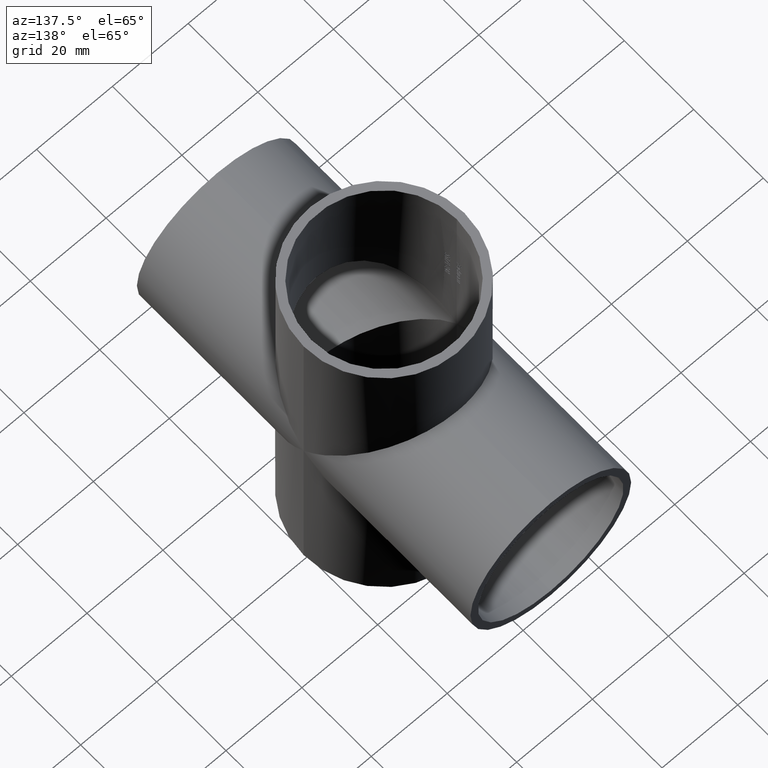
[diagram: clean part render]
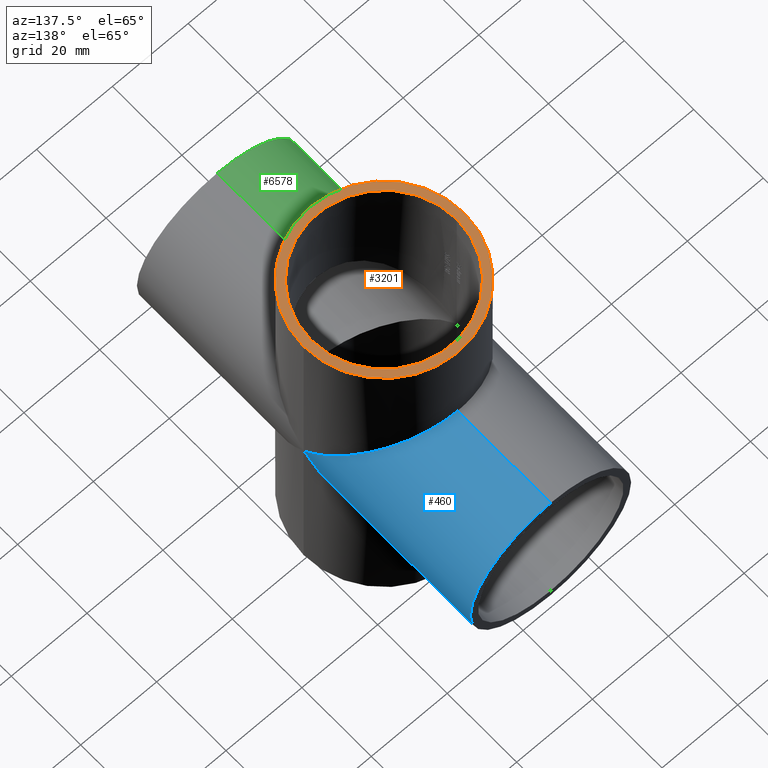
[diagram: same view with three faces highlighted in distinct colors, each labeled with its STEP entity id]
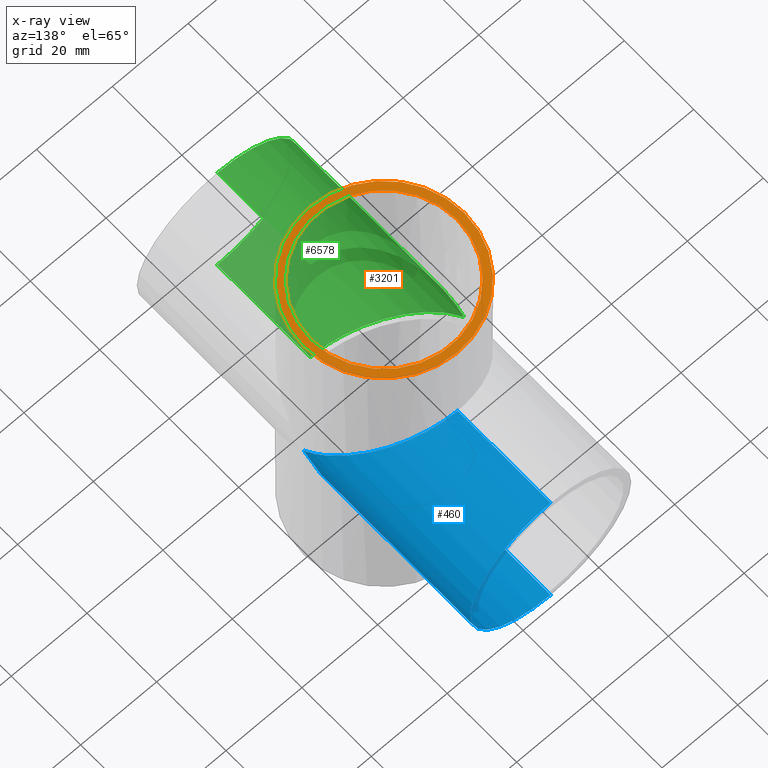
[diagram: x-ray of the same camera — body ghosted, the three highlighted faces saturated]
A machine part, auxiliary view with three faces highlighted in distinct colors.
The next image is the same camera in x-ray (body ghosted, the three faces saturated) — at least one of them is partly hidden behind the body in this view.
Their STEP definitions:

[orange] entity #3201 — the highlighted planar face has unit normal (0, 0, 1).
#69 = EDGE_CURVE ( 'NONE', #5589, #10329, #8343, .T. ) ;
#479 = PLANE ( 'NONE',  #4767 ) ;
#674 = VERTEX_POINT ( 'NONE', #2988 ) ;
#914 = CARTESIAN_POINT ( 'NONE',  ( 0.0000000000000000000, 0.0000000000000000000, 48.00000000000000000 ) ) ;
#1334 = DIRECTION ( 'NONE',  ( 1.000000000000000000, 0.0000000000000000000, -0.0000000000000000000 ) ) ;
#1770 = DIRECTION ( 'NONE',  ( 1.000000000000000000, 0.0000000000000000000, 0.0000000000000000000 ) ) ;
#2018 = EDGE_CURVE ( 'NONE', #674, #3695, #10590, .T. ) ;
#2138 = CIRCLE ( 'NONE', #6703, 19.20000000000000300 ) ;
#2278 = CARTESIAN_POINT ( 'NONE',  ( 0.0000000000000000000, 0.0000000000000000000, 48.00000000000000000 ) ) ;
#2318 = DIRECTION ( 'NONE',  ( 0.0000000000000000000, 0.0000000000000000000, 1.000000000000000000 ) ) ;
#2348 = DIRECTION ( 'NONE',  ( 1.000000000000000000, 0.0000000000000000000, 0.0000000000000000000 ) ) ;
#2349 = DIRECTION ( 'NONE',  ( 0.0000000000000000000, 0.0000000000000000000, 1.000000000000000000 ) ) ;
#2782 = FACE_BOUND ( 'NONE', #7956, .T. ) ;
#2840 = CARTESIAN_POINT ( 'NONE',  ( -19.20000000000000300, 0.0000000000000000000, 48.00000000000000000 ) ) ;
#2884 = ORIENTED_EDGE ( 'NONE', *, *, #2018, .T. ) ;
#2988 = CARTESIAN_POINT ( 'NONE',  ( 21.19999999999999900, 2.596251214192388800E-015, 48.00000000000000000 ) ) ;
#3140 = CARTESIAN_POINT ( 'NONE',  ( -21.19999999999999900, 0.0000000000000000000, 48.00000000000000000 ) ) ;
#3144 = ORIENTED_EDGE ( 'NONE', *, *, #9001, .T. ) ;
#3201 = ADVANCED_FACE ( 'NONE', ( #2782, #4960 ), #479, .T. ) ;
#3404 = ORIENTED_EDGE ( 'NONE', *, *, #69, .F. ) ;
#3547 = ORIENTED_EDGE ( 'NONE', *, *, #3705, .F. ) ;
#3571 = EDGE_LOOP ( 'NONE', ( #3144, #2884 ) ) ;
#3695 = VERTEX_POINT ( 'NONE', #3140 ) ;
#3705 = EDGE_CURVE ( 'NONE', #10329, #5589, #2138, .T. ) ;
#4767 = AXIS2_PLACEMENT_3D ( 'NONE', #7845, #6200, #1334 ) ;
#4924 = DIRECTION ( 'NONE',  ( 1.000000000000000000, 0.0000000000000000000, 0.0000000000000000000 ) ) ;
#4960 = FACE_OUTER_BOUND ( 'NONE', #3571, .T. ) ;
#4963 = DIRECTION ( 'NONE',  ( 0.0000000000000000000, 0.0000000000000000000, 1.000000000000000000 ) ) ;
#5002 = CARTESIAN_POINT ( 'NONE',  ( 0.0000000000000000000, 0.0000000000000000000, 48.00000000000000000 ) ) ;
#5589 = VERTEX_POINT ( 'NONE', #9005 ) ;
#6200 = DIRECTION ( 'NONE',  ( 0.0000000000000000000, 0.0000000000000000000, 1.000000000000000000 ) ) ;
#6650 = DIRECTION ( 'NONE',  ( 0.0000000000000000000, 0.0000000000000000000, 1.000000000000000000 ) ) ;
#6703 = AXIS2_PLACEMENT_3D ( 'NONE', #7240, #2349, #8078 ) ;
#7240 = CARTESIAN_POINT ( 'NONE',  ( 0.0000000000000000000, 0.0000000000000000000, 48.00000000000000000 ) ) ;
#7394 = AXIS2_PLACEMENT_3D ( 'NONE', #914, #6650, #1770 ) ;
#7845 = CARTESIAN_POINT ( 'NONE',  ( 0.0000000000000000000, 0.0000000000000000000, 48.00000000000000000 ) ) ;
#7956 = EDGE_LOOP ( 'NONE', ( #3547, #3404 ) ) ;
#8078 = DIRECTION ( 'NONE',  ( 1.000000000000000000, 0.0000000000000000000, 0.0000000000000000000 ) ) ;
#8343 = CIRCLE ( 'NONE', #8799, 19.20000000000000300 ) ;
#8799 = AXIS2_PLACEMENT_3D ( 'NONE', #2278, #2318, #2348 ) ;
#9001 = EDGE_CURVE ( 'NONE', #3695, #674, #10669, .T. ) ;
#9005 = CARTESIAN_POINT ( 'NONE',  ( 19.20000000000000300, 2.351321854362918100E-015, 48.00000000000000000 ) ) ;
#10329 = VERTEX_POINT ( 'NONE', #2840 ) ;
#10467 = AXIS2_PLACEMENT_3D ( 'NONE', #5002, #4963, #4924 ) ;
#10590 = CIRCLE ( 'NONE', #10467, 21.19999999999999900 ) ;
#10669 = CIRCLE ( 'NONE', #7394, 21.19999999999999900 ) ;

[blue] entity #460 — the highlighted cylindrical surface (partial cylindrical patch) has radius 21.2 mm, axis along (-0, -1, -0).
#384 = EDGE_CURVE ( 'NONE', #3604, #826, #6770, .T. ) ;
#460 = ADVANCED_FACE ( 'NONE', ( #1936 ), #5987, .T. ) ;
#826 = VERTEX_POINT ( 'NONE', #9466 ) ;
#1041 = CARTESIAN_POINT ( 'NONE',  ( 2.596251214192388800E-015, 48.00000000000000000, 21.19999999999999900 ) ) ;
#1086 =( BOUNDED_CURVE ( )  B_SPLINE_CURVE ( 3, ( #8696, #5408, #7892, #3001 ),
 .UNSPECIFIED., .F., .F. ) 
 B_SPLINE_CURVE_WITH_KNOTS ( ( 4, 4 ),
 ( 4.712388980384689700, 6.283185307179586200 ),
 .UNSPECIFIED. ) 
 CURVE ( )  GEOMETRIC_REPRESENTATION_ITEM ( )  RATIONAL_B_SPLINE_CURVE ( ( 1.000000000000000000, 0.8047378541243649400, 0.8047378541243649400, 1.000000000000000000 ) ) 
 REPRESENTATION_ITEM ( '' )  );
#1378 = CARTESIAN_POINT ( 'NONE',  ( 2.596251214192388800E-015, 48.00000000000000000, 21.19999999999999900 ) ) ;
#1435 = VERTEX_POINT ( 'NONE', #6893 ) ;
#1936 = FACE_OUTER_BOUND ( 'NONE', #4721, .T. ) ;
#2118 = ORIENTED_EDGE ( 'NONE', *, *, #6697, .T. ) ;
#2214 = DIRECTION ( 'NONE',  ( 0.0000000000000000000, 1.000000000000000000, 0.0000000000000000000 ) ) ;
#2332 = AXIS2_PLACEMENT_3D ( 'NONE', #5304, #5899, #4509 ) ;
#2496 = CARTESIAN_POINT ( 'NONE',  ( 0.0000000000000000000, 21.19999999999999900, -21.19999999999999900 ) ) ;
#2685 =( BOUNDED_CURVE ( )  B_SPLINE_CURVE ( 3, ( #7273, #9627, #8928, #4029 ),
 .UNSPECIFIED., .F., .T. ) 
 B_SPLINE_CURVE_WITH_KNOTS ( ( 4, 4 ),
 ( 3.141592653589793100, 4.712388980384689700 ),
 .UNSPECIFIED. ) 
 CURVE ( )  GEOMETRIC_REPRESENTATION_ITEM ( )  RATIONAL_B_SPLINE_CURVE ( ( 1.000000000000000000, 0.8047378541243649400, 0.8047378541243649400, 1.000000000000000000 ) ) 
 REPRESENTATION_ITEM ( '' )  );
#2741 = ORIENTED_EDGE ( 'NONE', *, *, #9049, .F. ) ;
#2901 = VERTEX_POINT ( 'NONE', #2496 ) ;
#3001 = CARTESIAN_POINT ( 'NONE',  ( 0.0000000000000000000, 21.19999999999999900, -21.19999999999999900 ) ) ;
#3002 = DIRECTION ( 'NONE',  ( -0.0000000000000000000, -1.000000000000000000, -0.0000000000000000000 ) ) ;
#3466 = DIRECTION ( 'NONE',  ( -0.0000000000000000000, -1.000000000000000000, -0.0000000000000000000 ) ) ;
#3589 = EDGE_CURVE ( 'NONE', #3604, #8686, #9172, .T. ) ;
#3604 = VERTEX_POINT ( 'NONE', #1378 ) ;
#4012 = AXIS2_PLACEMENT_3D ( 'NONE', #7094, #2214, #7930 ) ;
#4029 = CARTESIAN_POINT ( 'NONE',  ( 21.19999999999999900, 0.0000000000000000000, 0.0000000000000000000 ) ) ;
#4509 = DIRECTION ( 'NONE',  ( 0.0000000000000000000, 0.0000000000000000000, -1.000000000000000000 ) ) ;
#4622 = VECTOR ( 'NONE', #3002, 1000.000000000000000 ) ;
#4721 = EDGE_LOOP ( 'NONE', ( #5541, #6048, #6693, #2118, #2741 ) ) ;
#5304 = CARTESIAN_POINT ( 'NONE',  ( 0.0000000000000000000, 48.00000000000000000, 0.0000000000000000000 ) ) ;
#5408 = CARTESIAN_POINT ( 'NONE',  ( 21.19999999999999200, 12.41867247769037700, -12.41867247769037700 ) ) ;
#5541 = ORIENTED_EDGE ( 'NONE', *, *, #3589, .F. ) ;
#5899 = DIRECTION ( 'NONE',  ( -0.0000000000000000000, -1.000000000000000000, -0.0000000000000000000 ) ) ;
#5987 = CYLINDRICAL_SURFACE ( 'NONE', #2332, 21.19999999999999900 ) ;
#6048 = ORIENTED_EDGE ( 'NONE', *, *, #384, .T. ) ;
#6050 = VECTOR ( 'NONE', #3466, 1000.000000000000000 ) ;
#6386 = EDGE_CURVE ( 'NONE', #826, #1435, #2685, .T. ) ;
#6560 = CARTESIAN_POINT ( 'NONE',  ( 0.0000000000000000000, 48.00000000000000000, -21.19999999999999900 ) ) ;
#6693 = ORIENTED_EDGE ( 'NONE', *, *, #6386, .T. ) ;
#6697 = EDGE_CURVE ( 'NONE', #1435, #2901, #1086, .T. ) ;
#6770 = LINE ( 'NONE', #1041, #4622 ) ;
#6893 = CARTESIAN_POINT ( 'NONE',  ( 21.19999999999999900, 0.0000000000000000000, 0.0000000000000000000 ) ) ;
#7094 = CARTESIAN_POINT ( 'NONE',  ( 0.0000000000000000000, 48.00000000000000000, 0.0000000000000000000 ) ) ;
#7273 = CARTESIAN_POINT ( 'NONE',  ( 2.596251214192388800E-015, 21.19999999999999900, 21.19999999999999900 ) ) ;
#7892 = CARTESIAN_POINT ( 'NONE',  ( 12.41867247769038200, 21.19999999999999200, -21.19999999999999200 ) ) ;
#7930 = DIRECTION ( 'NONE',  ( 0.0000000000000000000, 0.0000000000000000000, 1.000000000000000000 ) ) ;
#8268 = LINE ( 'NONE', #9169, #6050 ) ;
#8686 = VERTEX_POINT ( 'NONE', #6560 ) ;
#8696 = CARTESIAN_POINT ( 'NONE',  ( 21.19999999999999900, 0.0000000000000000000, 0.0000000000000000000 ) ) ;
#8928 = CARTESIAN_POINT ( 'NONE',  ( 21.19999999999999200, 12.41867247769038600, 12.41867247769038600 ) ) ;
#9049 = EDGE_CURVE ( 'NONE', #8686, #2901, #8268, .T. ) ;
#9169 = CARTESIAN_POINT ( 'NONE',  ( 0.0000000000000000000, 48.00000000000000000, -21.19999999999999900 ) ) ;
#9172 = CIRCLE ( 'NONE', #4012, 21.19999999999999900 ) ;
#9466 = CARTESIAN_POINT ( 'NONE',  ( 2.596251214192388800E-015, 21.19999999999999900, 21.19999999999999900 ) ) ;
#9627 = CARTESIAN_POINT ( 'NONE',  ( 12.41867247769037700, 21.19999999999999200, 21.19999999999999200 ) ) ;

[green] entity #6578 — the highlighted cylindrical surface (partial cylindrical patch) has radius 21.2 mm, axis along (-0, -1, -0).
#407 = ORIENTED_EDGE ( 'NONE', *, *, #3398, .F. ) ;
#1065 = CARTESIAN_POINT ( 'NONE',  ( 2.596251214192388800E-015, 48.00000000000000000, 21.19999999999999900 ) ) ;
#1275 = CARTESIAN_POINT ( 'NONE',  ( -21.19999999999999900, 0.0000000000000000000, 0.0000000000000000000 ) ) ;
#2097 = CARTESIAN_POINT ( 'NONE',  ( -12.41867247769038200, -21.19999999999999200, -21.19999999999999200 ) ) ;
#2536 = CYLINDRICAL_SURFACE ( 'NONE', #8106, 21.19999999999999900 ) ;
#2673 = CIRCLE ( 'NONE', #6623, 21.19999999999999900 ) ;
#2728 = CARTESIAN_POINT ( 'NONE',  ( 0.0000000000000000000, -21.19999999999999600, -21.19999999999999900 ) ) ;
#2940 = DIRECTION ( 'NONE',  ( 0.0000000000000000000, 0.0000000000000000000, -1.000000000000000000 ) ) ;
#3008 = CARTESIAN_POINT ( 'NONE',  ( 2.596251214192388800E-015, -48.00000000000000000, 21.19999999999999900 ) ) ;
#3245 = EDGE_CURVE ( 'NONE', #3993, #6181, #9055, .T. ) ;
#3398 = EDGE_CURVE ( 'NONE', #9730, #7851, #5822, .T. ) ;
#3689 = VECTOR ( 'NONE', #7674, 1000.000000000000000 ) ;
#3690 = CARTESIAN_POINT ( 'NONE',  ( -21.19999999999999200, -12.41867247769038600, 12.41867247769038600 ) ) ;
#3828 = DIRECTION ( 'NONE',  ( -0.0000000000000000000, -1.000000000000000000, -0.0000000000000000000 ) ) ;
#3993 = VERTEX_POINT ( 'NONE', #2728 ) ;
#4156 =( BOUNDED_CURVE ( )  B_SPLINE_CURVE ( 3, ( #1275, #6139, #2097, #7825 ),
 .UNSPECIFIED., .F., .F. ) 
 B_SPLINE_CURVE_WITH_KNOTS ( ( 4, 4 ),
 ( 4.712388980384689700, 6.283185307179586200 ),
 .UNSPECIFIED. ) 
 CURVE ( )  GEOMETRIC_REPRESENTATION_ITEM ( )  RATIONAL_B_SPLINE_CURVE ( ( 1.000000000000000000, 0.8047378541243649400, 0.8047378541243649400, 1.000000000000000000 ) ) 
 REPRESENTATION_ITEM ( '' )  );
#4389 = CARTESIAN_POINT ( 'NONE',  ( 0.0000000000000000000, -48.00000000000000000, 0.0000000000000000000 ) ) ;
#4423 = CARTESIAN_POINT ( 'NONE',  ( 0.0000000000000000000, -48.00000000000000000, -21.19999999999999900 ) ) ;
#4478 = CARTESIAN_POINT ( 'NONE',  ( 2.596251214192388800E-015, -21.19999999999999600, 21.19999999999999900 ) ) ;
#4643 = CARTESIAN_POINT ( 'NONE',  ( 0.0000000000000000000, 48.00000000000000000, -21.19999999999999900 ) ) ;
#4719 = VECTOR ( 'NONE', #3828, 1000.000000000000000 ) ;
#4835 = CARTESIAN_POINT ( 'NONE',  ( 2.596251214192388800E-015, -21.19999999999999600, 21.19999999999999900 ) ) ;
#5180 = DIRECTION ( 'NONE',  ( 0.0000000000000000000, 0.0000000000000000000, 1.000000000000000000 ) ) ;
#5558 = CARTESIAN_POINT ( 'NONE',  ( -21.19999999999999900, 0.0000000000000000000, 0.0000000000000000000 ) ) ;
#5733 = EDGE_LOOP ( 'NONE', ( #407, #10528, #10026, #9556, #8792 ) ) ;
#5822 = LINE ( 'NONE', #1065, #3689 ) ;
#6073 = CARTESIAN_POINT ( 'NONE',  ( -12.41867247769037700, -21.19999999999999200, 21.19999999999999200 ) ) ;
#6139 = CARTESIAN_POINT ( 'NONE',  ( -21.19999999999999200, -12.41867247769037700, -12.41867247769037700 ) ) ;
#6143 = EDGE_CURVE ( 'NONE', #6181, #7851, #2673, .T. ) ;
#6181 = VERTEX_POINT ( 'NONE', #4423 ) ;
#6578 = ADVANCED_FACE ( 'NONE', ( #9069 ), #2536, .T. ) ;
#6623 = AXIS2_PLACEMENT_3D ( 'NONE', #4389, #10094, #5180 ) ;
#6999 = CARTESIAN_POINT ( 'NONE',  ( 0.0000000000000000000, 48.00000000000000000, 0.0000000000000000000 ) ) ;
#7674 = DIRECTION ( 'NONE',  ( -0.0000000000000000000, -1.000000000000000000, -0.0000000000000000000 ) ) ;
#7825 = CARTESIAN_POINT ( 'NONE',  ( 0.0000000000000000000, -21.19999999999999600, -21.19999999999999900 ) ) ;
#7851 = VERTEX_POINT ( 'NONE', #3008 ) ;
#8039 = EDGE_CURVE ( 'NONE', #9730, #8158, #8762, .T. ) ;
#8106 = AXIS2_PLACEMENT_3D ( 'NONE', #6999, #10226, #2940 ) ;
#8158 = VERTEX_POINT ( 'NONE', #5558 ) ;
#8524 = EDGE_CURVE ( 'NONE', #8158, #3993, #4156, .T. ) ;
#8762 =( BOUNDED_CURVE ( )  B_SPLINE_CURVE ( 3, ( #4478, #6073, #3690, #9402 ),
 .UNSPECIFIED., .F., .F. ) 
 B_SPLINE_CURVE_WITH_KNOTS ( ( 4, 4 ),
 ( 3.141592653589793100, 4.712388980384689700 ),
 .UNSPECIFIED. ) 
 CURVE ( )  GEOMETRIC_REPRESENTATION_ITEM ( )  RATIONAL_B_SPLINE_CURVE ( ( 1.000000000000000000, 0.8047378541243649400, 0.8047378541243649400, 1.000000000000000000 ) ) 
 REPRESENTATION_ITEM ( '' )  );
#8792 = ORIENTED_EDGE ( 'NONE', *, *, #6143, .T. ) ;
#9055 = LINE ( 'NONE', #4643, #4719 ) ;
#9069 = FACE_OUTER_BOUND ( 'NONE', #5733, .T. ) ;
#9402 = CARTESIAN_POINT ( 'NONE',  ( -21.19999999999999900, 0.0000000000000000000, 0.0000000000000000000 ) ) ;
#9556 = ORIENTED_EDGE ( 'NONE', *, *, #3245, .T. ) ;
#9730 = VERTEX_POINT ( 'NONE', #4835 ) ;
#10026 = ORIENTED_EDGE ( 'NONE', *, *, #8524, .T. ) ;
#10094 = DIRECTION ( 'NONE',  ( 0.0000000000000000000, 1.000000000000000000, 0.0000000000000000000 ) ) ;
#10226 = DIRECTION ( 'NONE',  ( -0.0000000000000000000, -1.000000000000000000, -0.0000000000000000000 ) ) ;
#10528 = ORIENTED_EDGE ( 'NONE', *, *, #8039, .T. ) ;